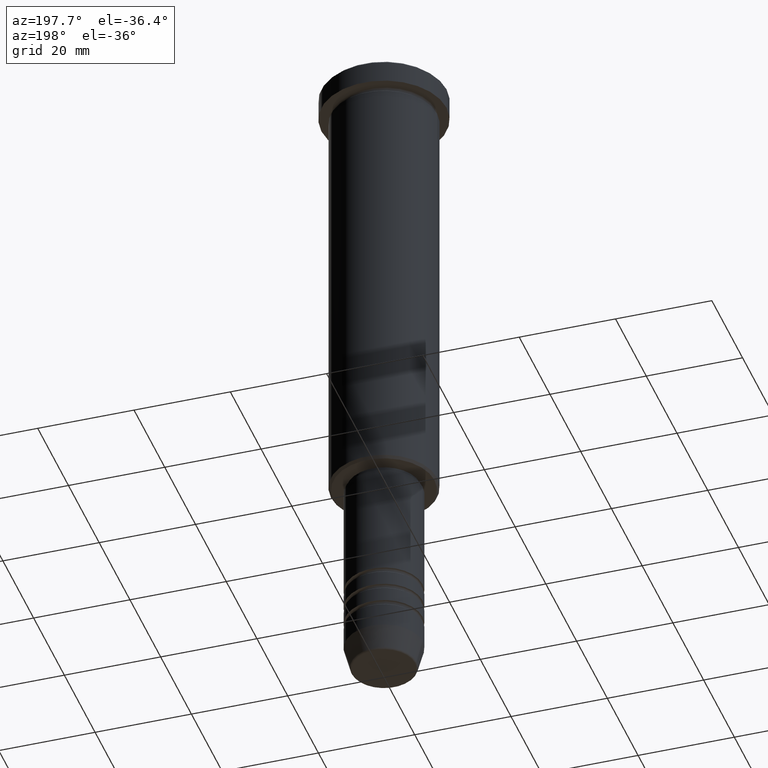
[diagram: clean part render]
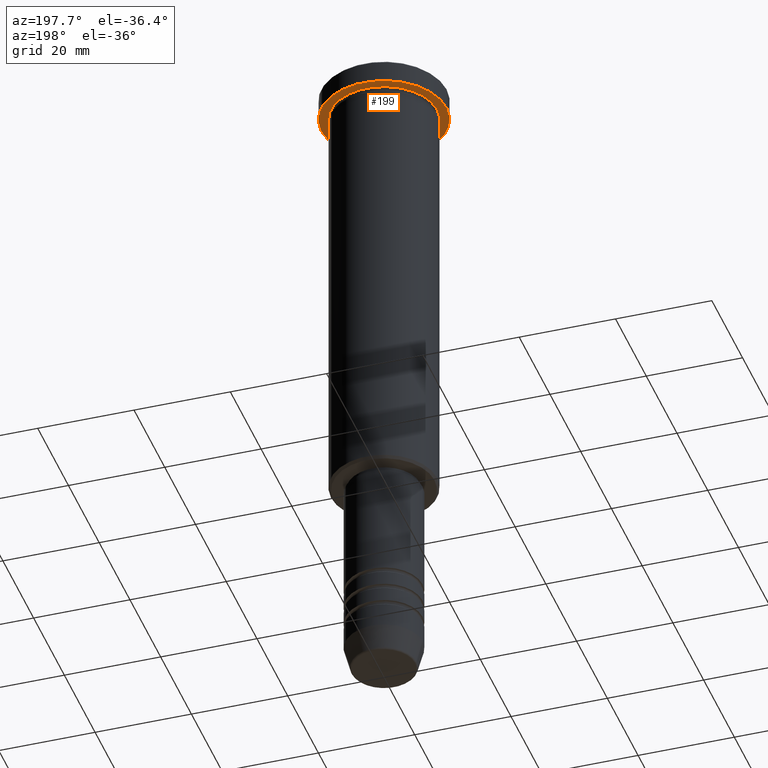
[diagram: same view with one face highlighted and labeled with its STEP entity id]
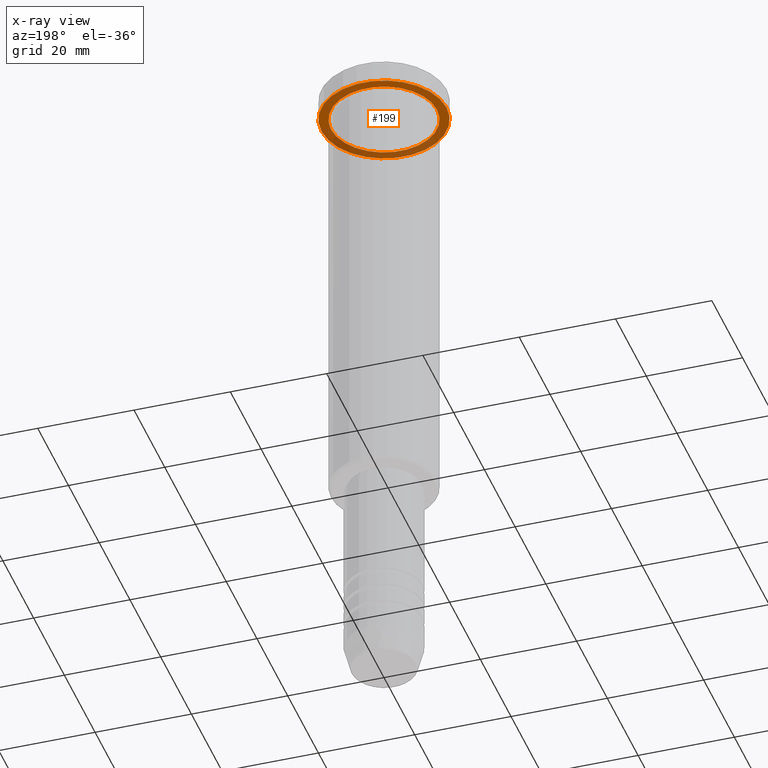
[diagram: x-ray of the same camera — body ghosted, the highlighted face saturated]
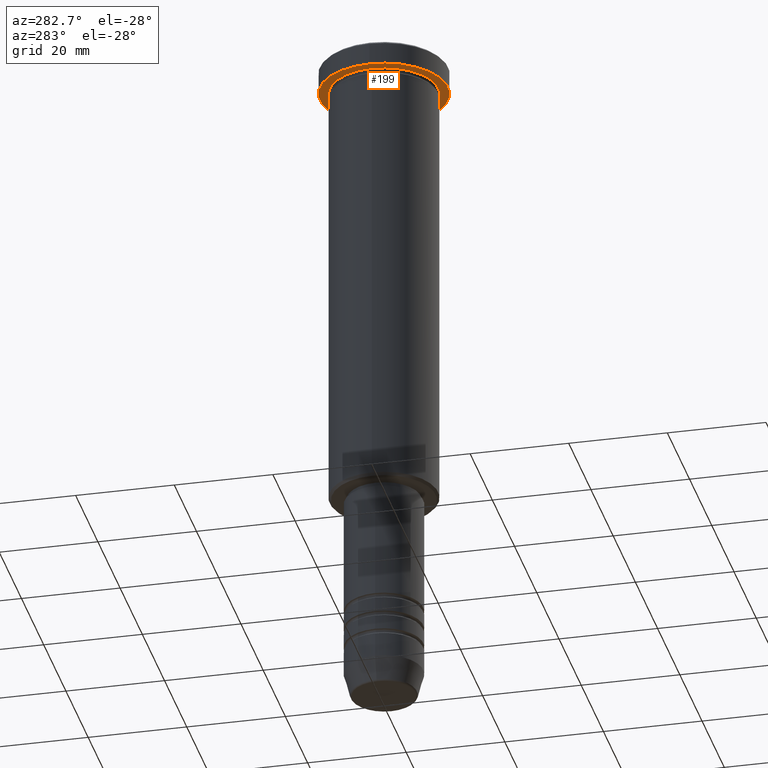
[diagram: same view with one face highlighted and labeled with its STEP entity id]
A machine part, auxiliary view. The second image highlights one B-rep face of the part: STEP entity #199.
The next image is the same camera in x-ray: the body ghosted, the highlighted face saturated — about 31% of this face is hidden behind the body in this view.
A second angle (auxiliary view) of the same face is appended — the face is thin or edge-on in the first view.
In plain terms, the highlighted planar face has unit normal (0, 0, -1).
Its self-contained STEP definition (entity closure, byte-faithful):
#9 = CARTESIAN_POINT ( 'NONE',  ( -13.00000000000000000, 1.592040838891559095E-15, -5.000000000000000000 ) ) ;
#56 = CARTESIAN_POINT ( 'NONE',  ( 0.000000000000000000, 0.000000000000000000, -5.000000000000000000 ) ) ;
#72 = AXIS2_PLACEMENT_3D ( 'NONE', #264, #987, #867 ) ;
#78 = DIRECTION ( 'NONE',  ( -1.000000000000000000, 0.000000000000000000, 0.000000000000000000 ) ) ;
#92 = AXIS2_PLACEMENT_3D ( 'NONE', #56, #685, #971 ) ;
#94 = CIRCLE ( 'NONE', #72, 13.00000000000000000 ) ;
#104 = EDGE_LOOP ( 'NONE', ( #1069, #1111 ) ) ;
#117 = FACE_BOUND ( 'NONE', #954, .T. ) ;
#120 = CARTESIAN_POINT ( 'NONE',  ( 0.000000000000000000, 0.000000000000000000, -5.000000000000000000 ) ) ;
#177 = DIRECTION ( 'NONE',  ( -0.000000000000000000, -0.000000000000000000, 1.000000000000000000 ) ) ;
#185 = ORIENTED_EDGE ( 'NONE', *, *, #1011, .T. ) ;
#199 = ADVANCED_FACE ( 'NONE', ( #117, #388 ), #751, .T. ) ;
#250 = EDGE_CURVE ( 'NONE', #916, #636, #760, .T. ) ;
#264 = CARTESIAN_POINT ( 'NONE',  ( 0.000000000000000000, 0.000000000000000000, -5.000000000000000000 ) ) ;
#268 = AXIS2_PLACEMENT_3D ( 'NONE', #723, #177, #78 ) ;
#277 = VERTEX_POINT ( 'NONE', #1050 ) ;
#311 = DIRECTION ( 'NONE',  ( -1.000000000000000000, 0.000000000000000000, -0.000000000000000000 ) ) ;
#388 = FACE_OUTER_BOUND ( 'NONE', #104, .T. ) ;
#408 = EDGE_CURVE ( 'NONE', #821, #277, #527, .T. ) ;
#436 = AXIS2_PLACEMENT_3D ( 'NONE', #1106, #483, #311 ) ;
#465 = CARTESIAN_POINT ( 'NONE',  ( 13.00000000000000000, 0.000000000000000000, -5.000000000000000000 ) ) ;
#483 = DIRECTION ( 'NONE',  ( 0.000000000000000000, 0.000000000000000000, -1.000000000000000000 ) ) ;
#527 = CIRCLE ( 'NONE', #268, 11.00000000000000000 ) ;
#589 = DIRECTION ( 'NONE',  ( -1.000000000000000000, 0.000000000000000000, 0.000000000000000000 ) ) ;
#628 = CARTESIAN_POINT ( 'NONE',  ( -11.00000000000000000, 0.000000000000000000, -4.999999999999999112 ) ) ;
#636 = VERTEX_POINT ( 'NONE', #9 ) ;
#685 = DIRECTION ( 'NONE',  ( -0.000000000000000000, -0.000000000000000000, 1.000000000000000000 ) ) ;
#707 = EDGE_CURVE ( 'NONE', #636, #916, #94, .T. ) ;
#723 = CARTESIAN_POINT ( 'NONE',  ( 0.000000000000000000, 0.000000000000000000, -5.000000000000000000 ) ) ;
#751 = PLANE ( 'NONE',  #436 ) ;
#760 = CIRCLE ( 'NONE', #92, 13.00000000000000000 ) ;
#798 = AXIS2_PLACEMENT_3D ( 'NONE', #120, #940, #589 ) ;
#821 = VERTEX_POINT ( 'NONE', #628 ) ;
#867 = DIRECTION ( 'NONE',  ( 1.000000000000000000, 0.000000000000000000, 0.000000000000000000 ) ) ;
#916 = VERTEX_POINT ( 'NONE', #465 ) ;
#940 = DIRECTION ( 'NONE',  ( -0.000000000000000000, -0.000000000000000000, 1.000000000000000000 ) ) ;
#954 = EDGE_LOOP ( 'NONE', ( #1038, #185 ) ) ;
#971 = DIRECTION ( 'NONE',  ( 1.000000000000000000, 0.000000000000000000, 0.000000000000000000 ) ) ;
#987 = DIRECTION ( 'NONE',  ( -0.000000000000000000, -0.000000000000000000, 1.000000000000000000 ) ) ;
#1011 = EDGE_CURVE ( 'NONE', #277, #821, #1061, .T. ) ;
#1038 = ORIENTED_EDGE ( 'NONE', *, *, #408, .T. ) ;
#1050 = CARTESIAN_POINT ( 'NONE',  ( 11.00000000000000000, 1.347111479062088405E-15, -4.999999999999999112 ) ) ;
#1061 = CIRCLE ( 'NONE', #798, 11.00000000000000000 ) ;
#1069 = ORIENTED_EDGE ( 'NONE', *, *, #250, .F. ) ;
#1106 = CARTESIAN_POINT ( 'NONE',  ( 0.000000000000000000, 13.00000000000000000, -5.000000000000000000 ) ) ;
#1111 = ORIENTED_EDGE ( 'NONE', *, *, #707, .F. ) ;